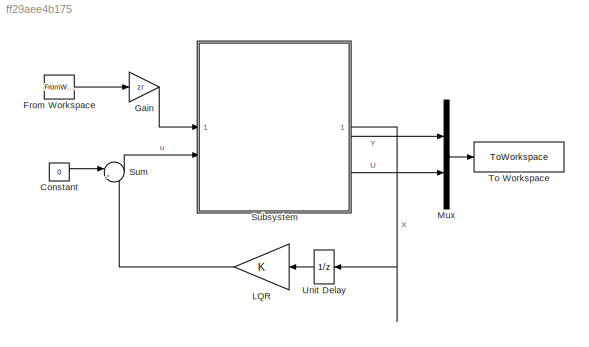
MODEL slx_ff29aee4b175
KIND model
CONFIG AbsTol = auto
CONFIG EnableMultiTasking = off
CONFIG FixedStep = auto
CONFIG MaxStep = auto
CONFIG MinStep = auto
CONFIG RelTol = 1e-3
CONFIG SampleTimeConstraint = Unconstrained
CONFIG SolverName = VariableStepAuto
CONFIG StartTime = 0.0
CONFIG StopTime = 5
BLOCK [Constant] Constant
  Value = 0
BLOCK [FromWorkspace] From Workspace
  VariableName = Zr
BLOCK [Gain] Gain
  Gain = zr
BLOCK [Gain] LQR
  Gain = K
  Multiplication = Matrix(K*u)
BLOCK [Mux] Mux
  DisplayOption = bar
  Inputs = 2
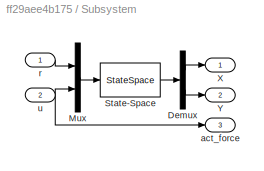
BLOCK [SubSystem] Subsystem
BLOCK [Demux] Subsystem/Demux
  Outputs = [4,3]
BLOCK [Mux] Subsystem/Mux
  DisplayOption = bar
  Inputs = 2
BLOCK [StateSpace] Subsystem/State-Space
  A = A
  B = B
  C = [eye(4);C]
  D = [zeros(4,2);D]
  InitialCondition = X0
  ParameterTunability = Unconstrained
BLOCK [Outport] Subsystem/X
BLOCK [Outport] Subsystem/Y
  Port = 2
BLOCK [Outport] Subsystem/act_force
  Port = 3
BLOCK [Inport] Subsystem/r
BLOCK [Inport] Subsystem/u
  Port = 2
BLOCK [Sum] Sum
  Inputs = |+-
BLOCK [ToWorkspace] To Workspace
  FixptAsFi = on
  MaxDataPoints = inf
  SampleTime = -1
  Save2DSignal = 2-D array (concatenate along first dimension)
  VariableName = x
BLOCK [UnitDelay] Unit Delay
  HasFrameUpgradeWarning = on
  NameLocation = top
  SampleTime = -1
LINE Constant:1 -> Sum:1
LINE From Workspace:1 -> Gain:1
LINE Gain:1 -> Subsystem:1
LINE LQR:1 -> Sum:2
LINE Mux:1 -> To Workspace:1
LINE Subsystem/Demux:1 -> Subsystem/X:1
LINE Subsystem/Demux:2 -> Subsystem/Y:1
LINE Subsystem/Mux:1 -> Subsystem/State-Space:1
LINE Subsystem/State-Space:1 -> Subsystem/Demux:1
LINE Subsystem/r:1 -> Subsystem/Mux:1
NET Subsystem/u:1 -> Subsystem/Mux:2, Subsystem/act_force:1
LINE Subsystem:1 -> Unit Delay:1
LINE Subsystem:2 -> Mux:1
LINE Subsystem:3 -> Mux:2
LINE Sum:1 -> Subsystem:2
LINE Unit Delay:1 -> LQR:1
note: NET lines group one-source signal fan-out (src -> all destinations, sorted); 1:1 wires keep LINE
